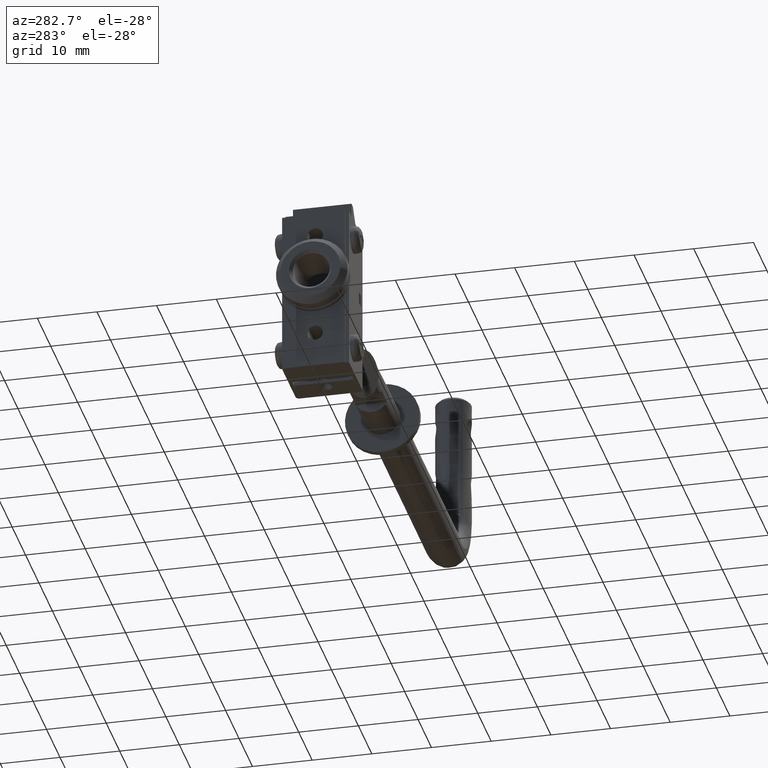
[diagram: clean part render]
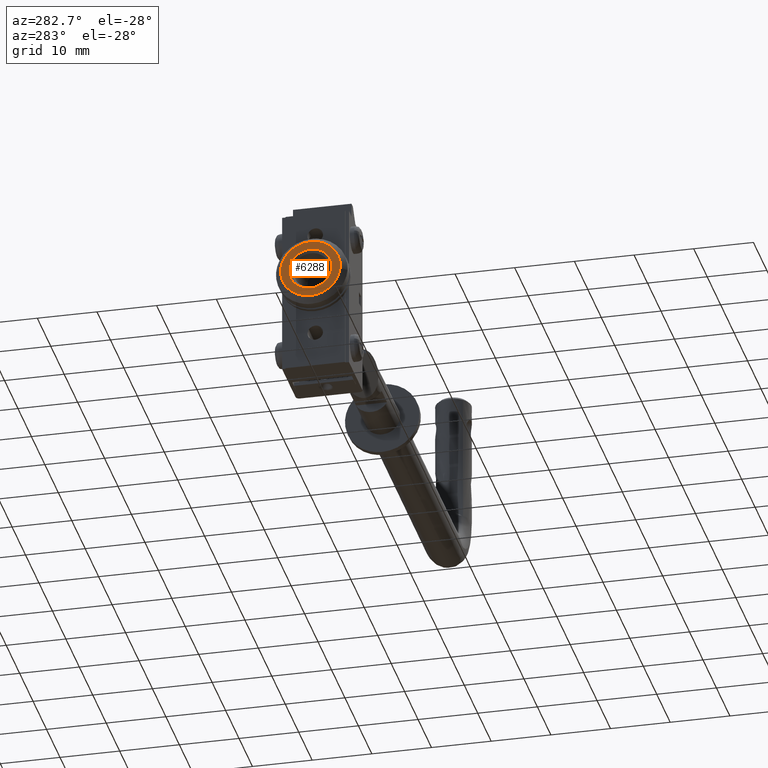
[diagram: same view with one face highlighted and labeled with its STEP entity id]
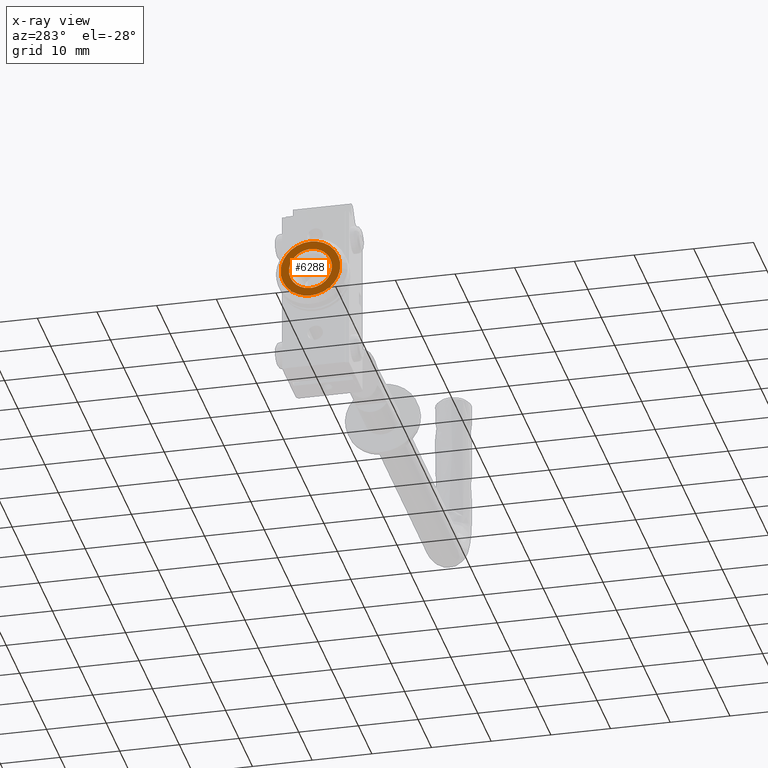
[diagram: x-ray of the same camera — body ghosted, the highlighted face saturated]
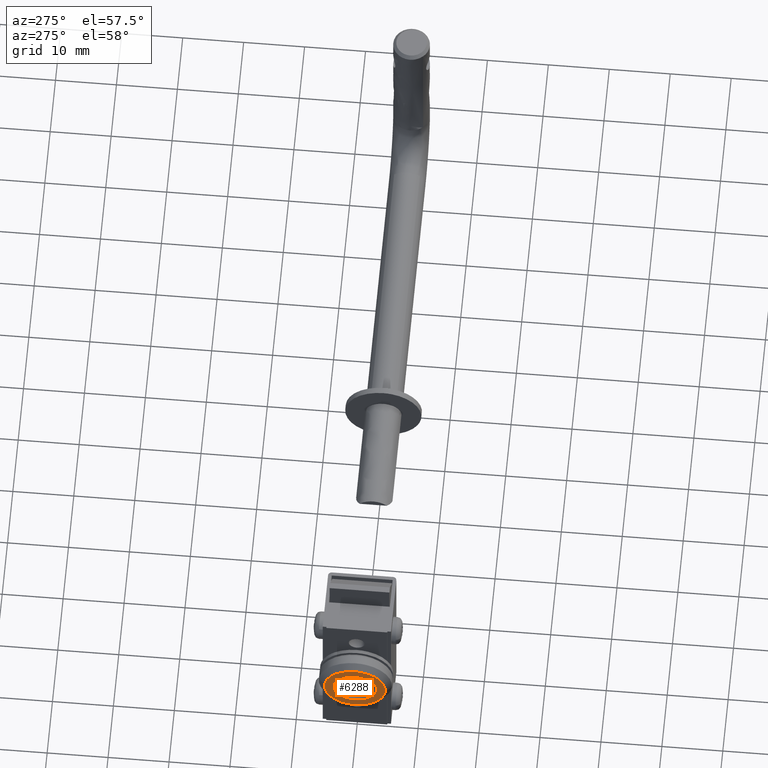
[diagram: same view with one face highlighted and labeled with its STEP entity id]
A machine part, auxiliary view. The second image highlights one B-rep face of the part: STEP entity #6288.
The next image is the same camera in x-ray: the body ghosted, the highlighted face saturated — about 0% of this face is hidden behind the body in this view.
A second angle (auxiliary view) of the same face is appended — the face is thin or edge-on in the first view.
In plain terms, the highlighted face is a freeform B-spline surface patch.
Its self-contained STEP definition (entity closure, byte-faithful):
#5176=CARTESIAN_POINT('',(-14.099987000006740,1.301228170074202,19.356606210065891));
#5177=VERTEX_POINT('',#5176);
#5183=CARTESIAN_POINT('',(-14.099987000106170,3.599862923130258,15.968584471426240));
#5184=VERTEX_POINT('',#5183);
#5185=CARTESIAN_POINT('',(-14.099987000106172,3.599862923130258,15.968584471426245));
#5186=CARTESIAN_POINT('',(-14.099987000000105,3.600000000000001,15.984291936266748));
#5187=CARTESIAN_POINT('',(-14.099987000000100,3.600000000000000,16.0));
#5188=CARTESIAN_POINT('',(-14.099987000000098,3.600000000000001,18.465460071771588));
#5189=CARTESIAN_POINT('',(-14.099987000006731,1.301228170074203,19.356606210065891));
#5197=(BOUNDED_CURVE()B_SPLINE_CURVE(2,(#5185,#5186,#5187,#5188,#5189),.UNSPECIFIED.,.F.,.U.)B_SPLINE_CURVE_WITH_KNOTS((3,2,3),(0.248460105588810,0.250000000000000,0.438623447386343),.UNSPECIFIED.)CURVE()GEOMETRIC_REPRESENTATION_ITEM()RATIONAL_B_SPLINE_CURVE((0.996414027924051,0.998195901477095,1.0,0.779013885405296,0.891493072885525))REPRESENTATION_ITEM(''));
#5198=EDGE_CURVE('',#5184,#5177,#5197,.T.);
#5310=CARTESIAN_POINT('',(-14.099987000000100,0.0,12.400000000000000));
#5311=VERTEX_POINT('',#5310);
#5312=CARTESIAN_POINT('',(-14.099987000000100,0.0,12.400000000000000));
#5313=CARTESIAN_POINT('',(-14.099987000000100,3.568720356597959,12.400000000000002));
#5314=CARTESIAN_POINT('',(-14.099987000106172,3.599862923130258,15.968584471426237));
#5322=(BOUNDED_CURVE()B_SPLINE_CURVE(2,(#5312,#5313,#5314),.UNSPECIFIED.,.F.,.U.)B_SPLINE_CURVE_WITH_KNOTS((3,3),(0.0,0.248460105588810),.UNSPECIFIED.)CURVE()GEOMETRIC_REPRESENTATION_ITEM()RATIONAL_B_SPLINE_CURVE((1.0,0.708910879709453,0.996414027924050))REPRESENTATION_ITEM(''));
#5323=EDGE_CURVE('',#5311,#5184,#5322,.T.);
#5325=CARTESIAN_POINT('',(-14.099987000000100,0.0,19.600000000000001));
#5326=VERTEX_POINT('',#5325);
#5327=CARTESIAN_POINT('',(-14.099987000000100,0.0,19.600000000000001));
#5328=CARTESIAN_POINT('',(-14.099987000000098,-3.600000000000000,19.600000000000001));
#5329=CARTESIAN_POINT('',(-14.099987000000100,-3.600000000000000,16.0));
#5330=CARTESIAN_POINT('',(-14.099987000000098,-3.600000000000000,12.400000000000002));
#5331=CARTESIAN_POINT('',(-14.099987000000100,0.0,12.400000000000000));
#5339=(BOUNDED_CURVE()B_SPLINE_CURVE(2,(#5327,#5328,#5329,#5330,#5331),.UNSPECIFIED.,.F.,.U.)B_SPLINE_CURVE_WITH_KNOTS((3,2,3),(0.500000000000000,0.750000000000000,1.0),.UNSPECIFIED.)CURVE()GEOMETRIC_REPRESENTATION_ITEM()RATIONAL_B_SPLINE_CURVE((1.0,0.707106781186547,1.0,0.707106781186547,1.0))REPRESENTATION_ITEM(''));
#5340=EDGE_CURVE('',#5326,#5311,#5339,.T.);
#5342=CARTESIAN_POINT('',(-14.099987000006738,1.301228170074202,19.356606210065895));
#5343=CARTESIAN_POINT('',(-14.099987000000104,0.673377401432518,19.599999999999994));
#5344=CARTESIAN_POINT('',(-14.099987000000100,0.0,19.600000000000001));
#5352=(BOUNDED_CURVE()B_SPLINE_CURVE(2,(#5342,#5343,#5344),.UNSPECIFIED.,.F.,.U.)B_SPLINE_CURVE_WITH_KNOTS((3,3),(0.438623447386344,0.500000000000000),.UNSPECIFIED.)CURVE()GEOMETRIC_REPRESENTATION_ITEM()RATIONAL_B_SPLINE_CURVE((0.891493072885525,0.928092895781252,1.0))REPRESENTATION_ITEM(''));
#5353=EDGE_CURVE('',#5177,#5326,#5352,.T.);
#5537=CARTESIAN_POINT('',(-14.099986999959921,4.984556761161297,16.392293125176700));
#5538=VERTEX_POINT('',#5537);
#5544=CARTESIAN_POINT('',(-14.099987000000100,0.0,20.999969999999792));
#5545=VERTEX_POINT('',#5544);
#5546=CARTESIAN_POINT('',(-14.099987000000100,0.0,20.999969999999792));
#5547=CARTESIAN_POINT('',(-14.099987000000102,4.621924726004622,20.999969999999792));
#5548=CARTESIAN_POINT('',(-14.099986999959926,4.984556761161297,16.392293125176696));
#5556=(BOUNDED_CURVE()B_SPLINE_CURVE(2,(#5546,#5547,#5548),.UNSPECIFIED.,.F.,.U.)B_SPLINE_CURVE_WITH_KNOTS((3,3),(0.0,0.236331300611637),.UNSPECIFIED.)CURVE()GEOMETRIC_REPRESENTATION_ITEM()RATIONAL_B_SPLINE_CURVE((1.0,0.723120658629952,0.969723356127718))REPRESENTATION_ITEM(''));
#5557=EDGE_CURVE('',#5545,#5538,#5556,.T.);
#5559=CARTESIAN_POINT('',(-14.099986999959921,-4.984556761161297,15.607706874823309));
#5560=VERTEX_POINT('',#5559);
#5561=CARTESIAN_POINT('',(-14.099986999959924,-4.984556761161297,15.607706874823304));
#5562=CARTESIAN_POINT('',(-14.099987000000100,-4.999969999999791,15.803550643356246));
#5563=CARTESIAN_POINT('',(-14.099987000000100,-4.999969999999791,16.0));
#5564=CARTESIAN_POINT('',(-14.099987000000100,-4.999969999999790,20.999969999999795));
#5565=CARTESIAN_POINT('',(-14.099987000000100,0.0,20.999969999999792));
#5573=(BOUNDED_CURVE()B_SPLINE_CURVE(2,(#5561,#5562,#5563,#5564,#5565),.UNSPECIFIED.,.F.,.U.)B_SPLINE_CURVE_WITH_KNOTS((3,2,3),(0.736331300611637,0.750000000000000,1.0),.UNSPECIFIED.)CURVE()GEOMETRIC_REPRESENTATION_ITEM()RATIONAL_B_SPLINE_CURVE((0.969723356127719,0.983986122556595,1.0,0.707106781186548,1.0))REPRESENTATION_ITEM(''));
#5574=EDGE_CURVE('',#5560,#5545,#5573,.T.);
#5680=CARTESIAN_POINT('',(-14.099987000000100,0.0,11.000030000000210));
#5681=VERTEX_POINT('',#5680);
#5682=CARTESIAN_POINT('',(-14.099987000000100,0.0,11.000030000000210));
#5683=CARTESIAN_POINT('',(-14.099987000000093,-4.621924726004610,11.000030000000208));
#5684=CARTESIAN_POINT('',(-14.099986999959928,-4.984556761161297,15.607706874823309));
#5692=(BOUNDED_CURVE()B_SPLINE_CURVE(2,(#5682,#5683,#5684),.UNSPECIFIED.,.F.,.U.)B_SPLINE_CURVE_WITH_KNOTS((3,3),(0.500000000000000,0.736331300611636),.UNSPECIFIED.)CURVE()GEOMETRIC_REPRESENTATION_ITEM()RATIONAL_B_SPLINE_CURVE((1.0,0.723120658629953,0.969723356127718))REPRESENTATION_ITEM(''));
#5693=EDGE_CURVE('',#5681,#5560,#5692,.T.);
#5695=CARTESIAN_POINT('',(-14.099986999959921,4.984556761161297,16.392293125176700));
#5696=CARTESIAN_POINT('',(-14.099987000000104,4.999969999999791,16.196449356643758));
#5697=CARTESIAN_POINT('',(-14.099987000000100,4.999969999999791,16.0));
#5698=CARTESIAN_POINT('',(-14.099987000000100,4.999969999999790,11.000030000000210));
#5699=CARTESIAN_POINT('',(-14.099987000000100,0.0,11.000030000000210));
#5707=(BOUNDED_CURVE()B_SPLINE_CURVE(2,(#5695,#5696,#5697,#5698,#5699),.UNSPECIFIED.,.F.,.U.)B_SPLINE_CURVE_WITH_KNOTS((3,2,3),(0.236331300611637,0.250000000000000,0.500000000000000),.UNSPECIFIED.)CURVE()GEOMETRIC_REPRESENTATION_ITEM()RATIONAL_B_SPLINE_CURVE((0.969723356127718,0.983986122556595,1.0,0.707106781186548,1.0))REPRESENTATION_ITEM(''));
#5708=EDGE_CURVE('',#5538,#5681,#5707,.T.);
#6271=CARTESIAN_POINT('',(-14.099987000000100,-5.497940775791363,21.499466514256540));
#6272=CARTESIAN_POINT('',(-14.099987000000100,-5.497940775791363,10.500532770492020));
#6273=CARTESIAN_POINT('',(-14.099987000000100,5.497941044010657,21.499466514256540));
#6274=CARTESIAN_POINT('',(-14.099987000000100,5.497941044010657,10.500532770492020));
#6275=B_SPLINE_SURFACE_WITH_KNOTS('',1,1,((#6271,#6273),(#6272,#6274)),.UNSPECIFIED.,.F.,.F.,.U.,(2,2),(2,2),(0.0,10.998933743764519),(0.0,10.995881819802021),.UNSPECIFIED.);
#6276=ORIENTED_EDGE('',*,*,#5557,.T.);
#6277=ORIENTED_EDGE('',*,*,#5708,.T.);
#6278=ORIENTED_EDGE('',*,*,#5693,.T.);
#6279=ORIENTED_EDGE('',*,*,#5574,.T.);
#6280=EDGE_LOOP('',(#6276,#6277,#6278,#6279));
#6281=FACE_OUTER_BOUND('',#6280,.T.);
#6282=ORIENTED_EDGE('',*,*,#5340,.T.);
#6283=ORIENTED_EDGE('',*,*,#5323,.T.);
#6284=ORIENTED_EDGE('',*,*,#5198,.T.);
#6285=ORIENTED_EDGE('',*,*,#5353,.T.);
#6286=EDGE_LOOP('',(#6282,#6283,#6284,#6285));
#6287=FACE_BOUND('',#6286,.T.);
#6288=ADVANCED_FACE('',(#6281,#6287),#6275,.F.);